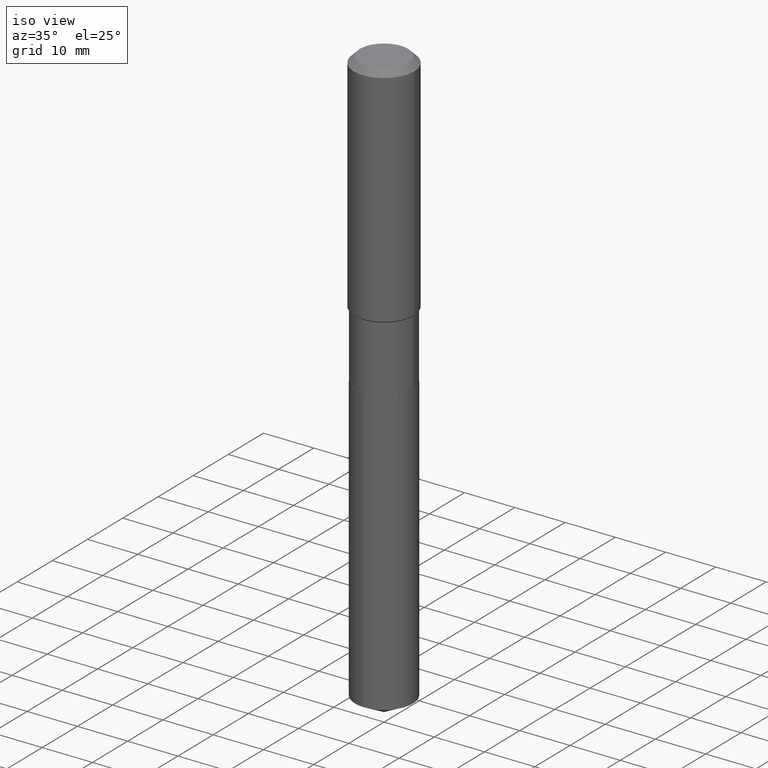
[diagram: clean part render]
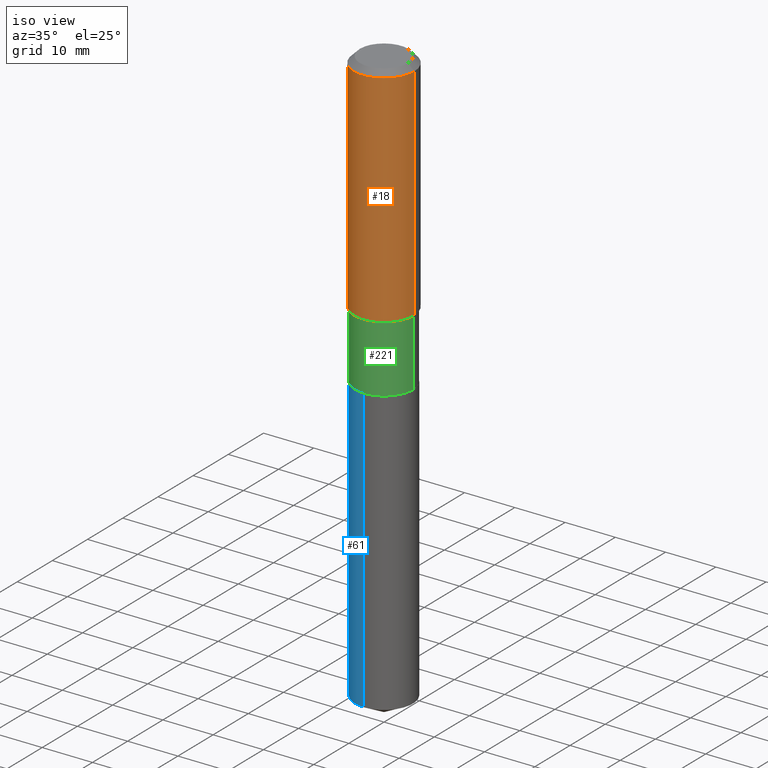
[diagram: same view with three faces highlighted in distinct colors, each labeled with its STEP entity id]
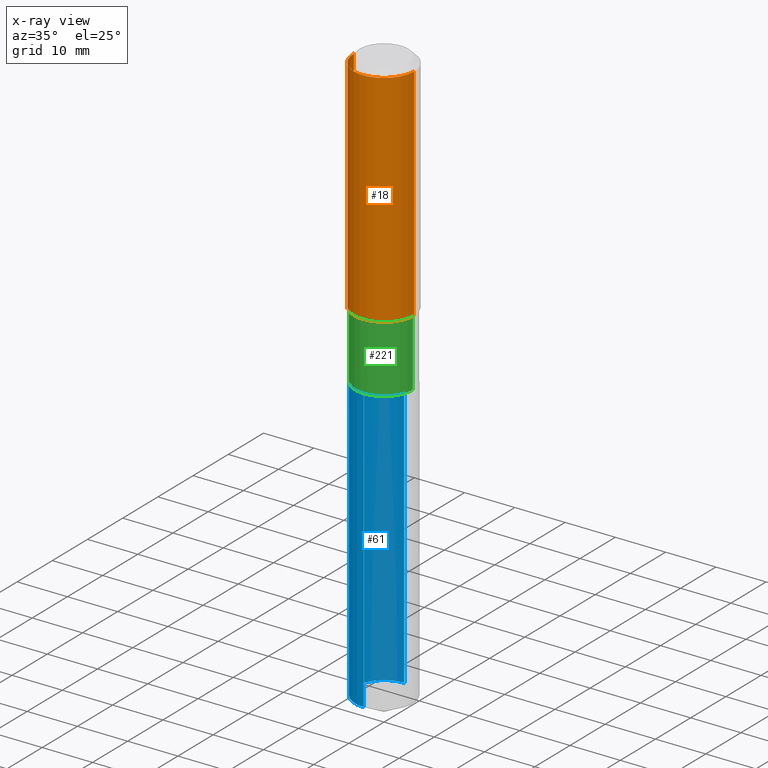
[diagram: x-ray of the same camera — body ghosted, the three highlighted faces saturated]
A machine part, iso view with three faces highlighted in distinct colors.
The next image is the same camera in x-ray (body ghosted, the three faces saturated) — at least one of them is partly hidden behind the body in this view.
Their STEP definitions:

[orange] entity #18 — the highlighted cylindrical surface (partial cylindrical patch) has radius 5.9995 mm, axis along (-0, 0, 1).
#9 = VERTEX_POINT ( 'NONE', #435 ) ;
#18 = ADVANCED_FACE ( 'NONE', ( #432 ), #96, .T. ) ;
#23 = CARTESIAN_POINT ( 'NONE',  ( -0.2362000000000002153, -4.511047027501882961E-15, -1.772699999999999054 ) ) ;
#30 = CIRCLE ( 'NONE', #115, 0.2362000000000002153 ) ;
#42 = DIRECTION ( 'NONE',  ( -2.445468806185136877E-29, 3.491481338843145188E-15, 1.000000000000000000 ) ) ;
#56 = ORIENTED_EDGE ( 'NONE', *, *, #178, .F. ) ;
#84 = CIRCLE ( 'NONE', #324, 0.2361999999999999933 ) ;
#96 = CYLINDRICAL_SURFACE ( 'NONE', #202, 0.2362000000000001043 ) ;
#115 = AXIS2_PLACEMENT_3D ( 'NONE', #172, #347, #451 ) ;
#116 = VECTOR ( 'NONE', #274, 39.37007874015748143 ) ;
#129 = EDGE_LOOP ( 'NONE', ( #155, #488, #240, #56 ) ) ;
#148 = EDGE_CURVE ( 'NONE', #313, #251, #165, .T. ) ;
#152 = EDGE_CURVE ( 'NONE', #163, #9, #158, .T. ) ;
#155 = ORIENTED_EDGE ( 'NONE', *, *, #152, .F. ) ;
#158 = LINE ( 'NONE', #373, #339 ) ;
#163 = VERTEX_POINT ( 'NONE', #23 ) ;
#165 = LINE ( 'NONE', #410, #116 ) ;
#170 = CARTESIAN_POINT ( 'NONE',  ( 0.2362000000000002153, -7.838724753836739036E-15, -1.772699999999999054 ) ) ;
#172 = CARTESIAN_POINT ( 'NONE',  ( 4.335082552724389227E-29, -6.189348969367240933E-15, -1.772699999999999054 ) ) ;
#178 = EDGE_CURVE ( 'NONE', #9, #251, #84, .T. ) ;
#200 = CARTESIAN_POINT ( 'NONE',  ( 1.155239464041865506E-30, -1.649375784469511859E-16, -0.04724000000000028177 ) ) ;
#202 = AXIS2_PLACEMENT_3D ( 'NONE', #226, #369, #257 ) ;
#205 = EDGE_CURVE ( 'NONE', #163, #313, #30, .T. ) ;
#226 = CARTESIAN_POINT ( 'NONE',  ( 0.000000000000000000, 0.000000000000000000, 0.000000000000000000 ) ) ;
#227 = DIRECTION ( 'NONE',  ( -2.445468806185136597E-29, 3.491481338843145583E-15, 1.000000000000000000 ) ) ;
#240 = ORIENTED_EDGE ( 'NONE', *, *, #148, .T. ) ;
#251 = VERTEX_POINT ( 'NONE', #307 ) ;
#257 = DIRECTION ( 'NONE',  ( 1.000000000000000000, -6.982962677686266711E-15, 4.876176775795935793E-29 ) ) ;
#274 = DIRECTION ( 'NONE',  ( -2.445468806185136877E-29, 3.491481338843145188E-15, 1.000000000000000000 ) ) ;
#307 = CARTESIAN_POINT ( 'NONE',  ( 0.2361999999999999933, -1.814313362916447440E-15, -0.04724000000000028177 ) ) ;
#313 = VERTEX_POINT ( 'NONE', #170 ) ;
#324 = AXIS2_PLACEMENT_3D ( 'NONE', #200, #227, #353 ) ;
#339 = VECTOR ( 'NONE', #42, 39.37007874015748143 ) ;
#347 = DIRECTION ( 'NONE',  ( -2.445468806185136597E-29, 3.491481338843145583E-15, 1.000000000000000000 ) ) ;
#353 = DIRECTION ( 'NONE',  ( 1.000000000000000000, -6.982962677686266711E-15, 0.000000000000000000 ) ) ;
#369 = DIRECTION ( 'NONE',  ( -2.445468806185136597E-29, 3.491481338843145583E-15, 1.000000000000000000 ) ) ;
#373 = CARTESIAN_POINT ( 'NONE',  ( -0.2362000000000001043, 1.678301941865357380E-15, -1.161852468318209317E-29 ) ) ;
#410 = CARTESIAN_POINT ( 'NONE',  ( 0.2362000000000001043, -1.649375784469496920E-15, 1.151752954443000508E-29 ) ) ;
#432 = FACE_OUTER_BOUND ( 'NONE', #129, .T. ) ;
#435 = CARTESIAN_POINT ( 'NONE',  ( -0.2361999999999999933, -1.498841332041738346E-15, -0.04724000000000028177 ) ) ;
#451 = DIRECTION ( 'NONE',  ( 1.000000000000000000, -6.982962677686266711E-15, 0.000000000000000000 ) ) ;
#488 = ORIENTED_EDGE ( 'NONE', *, *, #205, .T. ) ;

[blue] entity #61 — the highlighted cylindrical surface (edge-blend (fillet) strip) has radius 5.7506 mm, axis along (-0, 0, 1).
#1 = CIRCLE ( 'NONE', #147, 0.2263999999999999624 ) ;
#4 = ORIENTED_EDGE ( 'NONE', *, *, #406, .T. ) ;
#31 = VECTOR ( 'NONE', #350, 39.37007874015748143 ) ;
#48 = EDGE_CURVE ( 'NONE', #381, #187, #368, .T. ) ;
#61 = ADVANCED_FACE ( 'NONE', ( #198 ), #169, .T. ) ;
#65 = CARTESIAN_POINT ( 'NONE',  ( 1.608668753760977191E-15, 0.2263999999999919133, -2.303200000000000358 ) ) ;
#83 = VERTEX_POINT ( 'NONE', #434 ) ;
#93 = VECTOR ( 'NONE', #366, 39.37007874015748143 ) ;
#117 = CARTESIAN_POINT ( 'NONE',  ( -1.580942750228060187E-15, -0.2264000000000157831, -4.525320984671840741 ) ) ;
#136 = DIRECTION ( 'NONE',  ( -2.445496607423183772E-29, 3.491441525887913744E-15, 1.000000000000000000 ) ) ;
#147 = AXIS2_PLACEMENT_3D ( 'NONE', #371, #249, #184 ) ;
#169 = CYLINDRICAL_SURFACE ( 'NONE', #292, 0.2263999999999999624 ) ;
#183 = VERTEX_POINT ( 'NONE', #117 ) ;
#184 = DIRECTION ( 'NONE',  ( -6.982962677686265922E-15, -1.000000000000000000, 2.413293280622141084E-15 ) ) ;
#186 = DIRECTION ( 'NONE',  ( -6.982962677686265922E-15, -1.000000000000000000, 3.619939920933211627E-15 ) ) ;
#187 = VERTEX_POINT ( 'NONE', #305 ) ;
#198 = FACE_OUTER_BOUND ( 'NONE', #337, .T. ) ;
#228 = DIRECTION ( 'NONE',  ( -2.445496607423183772E-29, 3.491441525887913744E-15, 1.000000000000000000 ) ) ;
#249 = DIRECTION ( 'NONE',  ( -2.445496607423183772E-29, 3.491441525887913744E-15, 1.000000000000000000 ) ) ;
#277 = DIRECTION ( 'NONE',  ( -6.982962677686265922E-15, -1.000000000000000000, 3.619939920933211627E-15 ) ) ;
#284 = ORIENTED_EDGE ( 'NONE', *, *, #48, .F. ) ;
#289 = CARTESIAN_POINT ( 'NONE',  ( -1.580942750228114224E-15, -0.2264000000000080115, -2.303199999999998582 ) ) ;
#292 = AXIS2_PLACEMENT_3D ( 'NONE', #468, #136, #277 ) ;
#305 = CARTESIAN_POINT ( 'NONE',  ( -1.580942750228114224E-15, -0.2264000000000080115, -2.303199999999998582 ) ) ;
#327 = ORIENTED_EDGE ( 'NONE', *, *, #450, .F. ) ;
#337 = EDGE_LOOP ( 'NONE', ( #327, #4, #447, #284 ) ) ;
#350 = DIRECTION ( 'NONE',  ( -2.445496607423184052E-29, 3.491441525887913744E-15, 1.000000000000000000 ) ) ;
#361 = AXIS2_PLACEMENT_3D ( 'NONE', #412, #228, #186 ) ;
#366 = DIRECTION ( 'NONE',  ( -2.445496607423184052E-29, 3.491441525887913744E-15, 1.000000000000000000 ) ) ;
#368 = CIRCLE ( 'NONE', #361, 0.2263999999999999624 ) ;
#371 = CARTESIAN_POINT ( 'NONE',  ( 1.106659308370445826E-28, -1.579998530105374053E-14, -4.525320984671841629 ) ) ;
#381 = VERTEX_POINT ( 'NONE', #65 ) ;
#385 = LINE ( 'NONE', #424, #31 ) ;
#387 = EDGE_CURVE ( 'NONE', #183, #187, #487, .T. ) ;
#406 = EDGE_CURVE ( 'NONE', #83, #183, #1, .T. ) ;
#412 = CARTESIAN_POINT ( 'NONE',  ( 5.632403754405604963E-29, -8.041579819623531161E-15, -2.303199999999999470 ) ) ;
#424 = CARTESIAN_POINT ( 'NONE',  ( 1.608668753760922760E-15, 0.2263999999999919410, -2.303200000000000358 ) ) ;
#434 = CARTESIAN_POINT ( 'NONE',  ( 1.608668753760976994E-15, 0.2263999999999841972, -4.525320984671841629 ) ) ;
#447 = ORIENTED_EDGE ( 'NONE', *, *, #387, .T. ) ;
#450 = EDGE_CURVE ( 'NONE', #83, #381, #385, .T. ) ;
#468 = CARTESIAN_POINT ( 'NONE',  ( 5.632403754405604963E-29, -8.041579819623531161E-15, -2.303199999999999470 ) ) ;
#487 = LINE ( 'NONE', #289, #93 ) ;

[green] entity #221 — the highlighted cylindrical surface (edge-blend (fillet) strip) has radius 5.7506 mm, axis along (-0, 0, 1).
#5 = VERTEX_POINT ( 'NONE', #215 ) ;
#19 = CARTESIAN_POINT ( 'NONE',  ( 0.2263999999999999346, -1.580942750228170233E-15, 1.103966422040199590E-29 ) ) ;
#22 = AXIS2_PLACEMENT_3D ( 'NONE', #149, #442, #105 ) ;
#24 = LINE ( 'NONE', #19, #268 ) ;
#44 = DIRECTION ( 'NONE',  ( -2.445468806185136597E-29, 3.491481338843145583E-15, 1.000000000000000000 ) ) ;
#55 = DIRECTION ( 'NONE',  ( -2.445468806185136877E-29, 3.491481338843145188E-15, 1.000000000000000000 ) ) ;
#58 = VERTEX_POINT ( 'NONE', #132 ) ;
#70 = CYLINDRICAL_SURFACE ( 'NONE', #179, 0.2263999999999999346 ) ;
#75 = CARTESIAN_POINT ( 'NONE',  ( -0.2263999999999999346, 1.608668753760866356E-15, -1.113646904433710280E-29 ) ) ;
#104 = ORIENTED_EDGE ( 'NONE', *, *, #440, .F. ) ;
#105 = DIRECTION ( 'NONE',  ( 1.000000000000000000, -6.982962677686269077E-15, 0.000000000000000000 ) ) ;
#132 = CARTESIAN_POINT ( 'NONE',  ( -0.2263999999999999624, -5.523031028960140857E-15, -2.302699999999999303 ) ) ;
#137 = EDGE_CURVE ( 'NONE', #58, #394, #209, .T. ) ;
#149 = CARTESIAN_POINT ( 'NONE',  ( 5.631181020002513283E-29, -8.039834078954108869E-15, -2.302699999999999303 ) ) ;
#159 = ORIENTED_EDGE ( 'NONE', *, *, #457, .T. ) ;
#179 = AXIS2_PLACEMENT_3D ( 'NONE', #438, #482, #242 ) ;
#185 = VERTEX_POINT ( 'NONE', #341 ) ;
#209 = CIRCLE ( 'NONE', #22, 0.2263999999999999624 ) ;
#215 = CARTESIAN_POINT ( 'NONE',  ( -0.2263999999999999069, -5.523031028960140857E-15, -1.782499999999999307 ) ) ;
#216 = CARTESIAN_POINT ( 'NONE',  ( 0.2263999999999999624, -9.620776829182280876E-15, -2.302699999999999303 ) ) ;
#221 = ADVANCED_FACE ( 'NONE', ( #254 ), #70, .T. ) ;
#235 = CARTESIAN_POINT ( 'NONE',  ( 4.359048147025004325E-29, -6.223565486487904770E-15, -1.782499999999999307 ) ) ;
#242 = DIRECTION ( 'NONE',  ( 1.000000000000000000, -6.982962677686265922E-15, 4.876176775795935793E-29 ) ) ;
#254 = FACE_OUTER_BOUND ( 'NONE', #365, .T. ) ;
#268 = VECTOR ( 'NONE', #55, 39.37007874015748143 ) ;
#297 = ORIENTED_EDGE ( 'NONE', *, *, #421, .F. ) ;
#302 = ORIENTED_EDGE ( 'NONE', *, *, #137, .T. ) ;
#325 = CIRCLE ( 'NONE', #429, 0.2263999999999999069 ) ;
#341 = CARTESIAN_POINT ( 'NONE',  ( 0.2263999999999999069, -7.804508236716074411E-15, -1.782499999999999307 ) ) ;
#342 = DIRECTION ( 'NONE',  ( -2.445468806185136877E-29, 3.491481338843145188E-15, 1.000000000000000000 ) ) ;
#365 = EDGE_LOOP ( 'NONE', ( #297, #302, #159, #104 ) ) ;
#377 = DIRECTION ( 'NONE',  ( 1.000000000000000000, -6.982962677686265922E-15, 0.000000000000000000 ) ) ;
#394 = VERTEX_POINT ( 'NONE', #216 ) ;
#421 = EDGE_CURVE ( 'NONE', #58, #5, #452, .T. ) ;
#429 = AXIS2_PLACEMENT_3D ( 'NONE', #235, #44, #377 ) ;
#438 = CARTESIAN_POINT ( 'NONE',  ( 0.000000000000000000, 0.000000000000000000, 0.000000000000000000 ) ) ;
#440 = EDGE_CURVE ( 'NONE', #5, #185, #325, .T. ) ;
#442 = DIRECTION ( 'NONE',  ( -2.445468806185136597E-29, 3.491481338843145583E-15, 1.000000000000000000 ) ) ;
#452 = LINE ( 'NONE', #75, #484 ) ;
#457 = EDGE_CURVE ( 'NONE', #394, #185, #24, .T. ) ;
#482 = DIRECTION ( 'NONE',  ( -2.445468806185136597E-29, 3.491481338843145583E-15, 1.000000000000000000 ) ) ;
#484 = VECTOR ( 'NONE', #342, 39.37007874015748143 ) ;